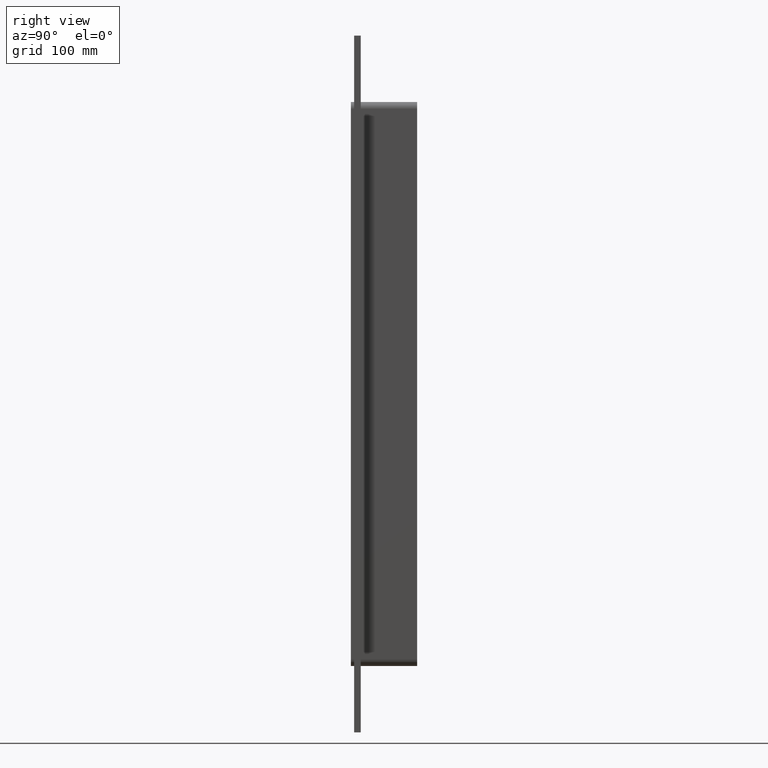
[diagram: clean part render]
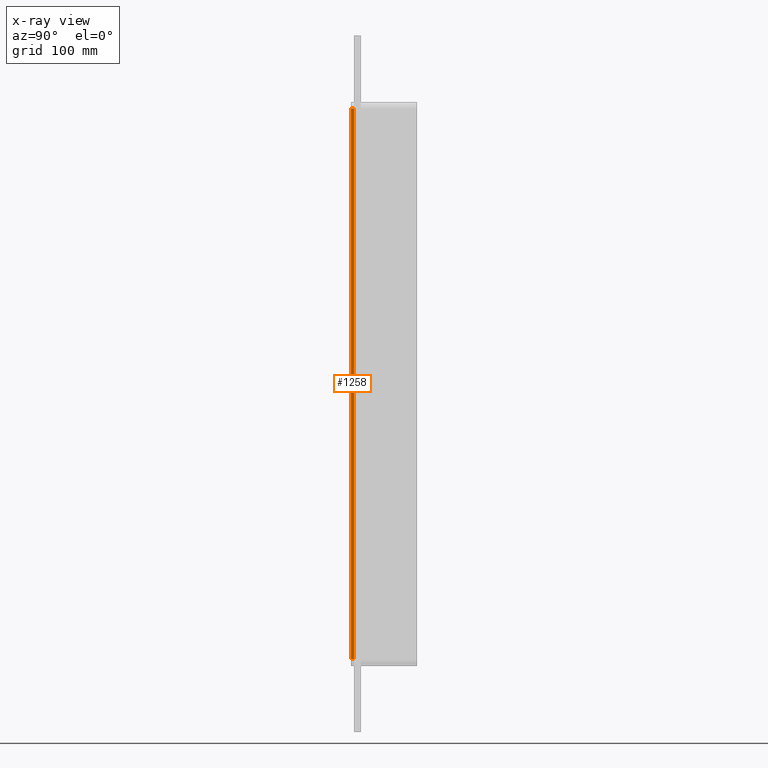
[diagram: x-ray — body ghosted, one internal face saturated and labeled with its STEP entity id]
A machine part, right view, then the same camera in x-ray: the body is ghosted and one INTERNAL B-rep face — a face not visible from any outside direction — is saturated and labeled: STEP entity #1258.
In plain terms, the highlighted planar face has unit normal (-1, 0, 0).
Its self-contained STEP definition (entity closure, byte-faithful):
#856=CARTESIAN_POINT('',(-36.25,0.0,249.25));
#857=VERTEX_POINT('',#856);
#907=CARTESIAN_POINT('',(-36.25,0.0,-249.25));
#908=VERTEX_POINT('',#907);
#916=CARTESIAN_POINT('',(-36.25,0.0,249.24999999999997));
#917=DIRECTION('',(0.0,0.0,-1.0));
#918=VECTOR('',#917,498.5);
#919=LINE('',#916,#918);
#920=EDGE_CURVE('',#857,#908,#919,.T.);
#1167=CARTESIAN_POINT('',(-36.25,-3.0,-249.25));
#1168=VERTEX_POINT('',#1167);
#1176=CARTESIAN_POINT('',(-36.25,-3.0,-249.25));
#1177=DIRECTION('',(0.0,1.0,0.0));
#1178=VECTOR('',#1177,3.0);
#1179=LINE('',#1176,#1178);
#1180=EDGE_CURVE('',#1168,#908,#1179,.T.);
#1235=CARTESIAN_POINT('',(-36.25,0.0,-255.25000000000003));
#1236=DIRECTION('',(-1.0,0.0,0.0));
#1237=DIRECTION('',(0.0,0.0,1.0));
#1238=AXIS2_PLACEMENT_3D('',#1235,#1236,#1237);
#1239=PLANE('',#1238);
#1240=ORIENTED_EDGE('',*,*,#920,.T.);
#1241=ORIENTED_EDGE('',*,*,#1180,.F.);
#1242=CARTESIAN_POINT('',(-36.25,-3.0,249.25));
#1243=VERTEX_POINT('',#1242);
#1244=CARTESIAN_POINT('',(-36.25,-3.0,249.24999999999997));
#1245=DIRECTION('',(0.0,0.0,-1.0));
#1246=VECTOR('',#1245,498.5);
#1247=LINE('',#1244,#1246);
#1248=EDGE_CURVE('',#1243,#1168,#1247,.T.);
#1249=ORIENTED_EDGE('',*,*,#1248,.F.);
#1250=CARTESIAN_POINT('',(-36.25,0.0,249.25));
#1251=DIRECTION('',(0.0,-1.0,0.0));
#1252=VECTOR('',#1251,3.0);
#1253=LINE('',#1250,#1252);
#1254=EDGE_CURVE('',#857,#1243,#1253,.T.);
#1255=ORIENTED_EDGE('',*,*,#1254,.F.);
#1256=EDGE_LOOP('',(#1240,#1241,#1249,#1255));
#1257=FACE_OUTER_BOUND('',#1256,.T.);
#1258=ADVANCED_FACE('',(#1257),#1239,.T.);